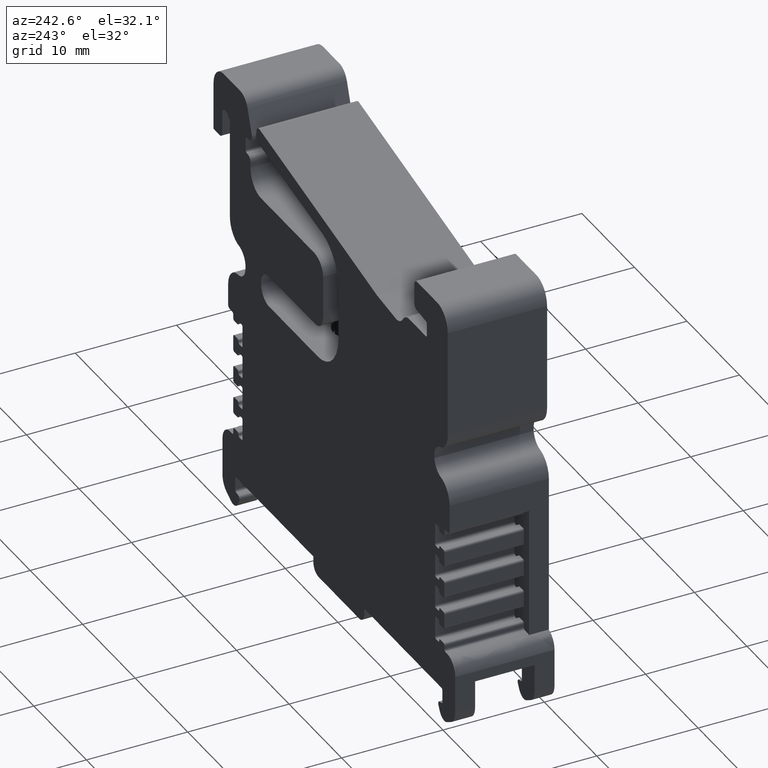
[diagram: clean part render]
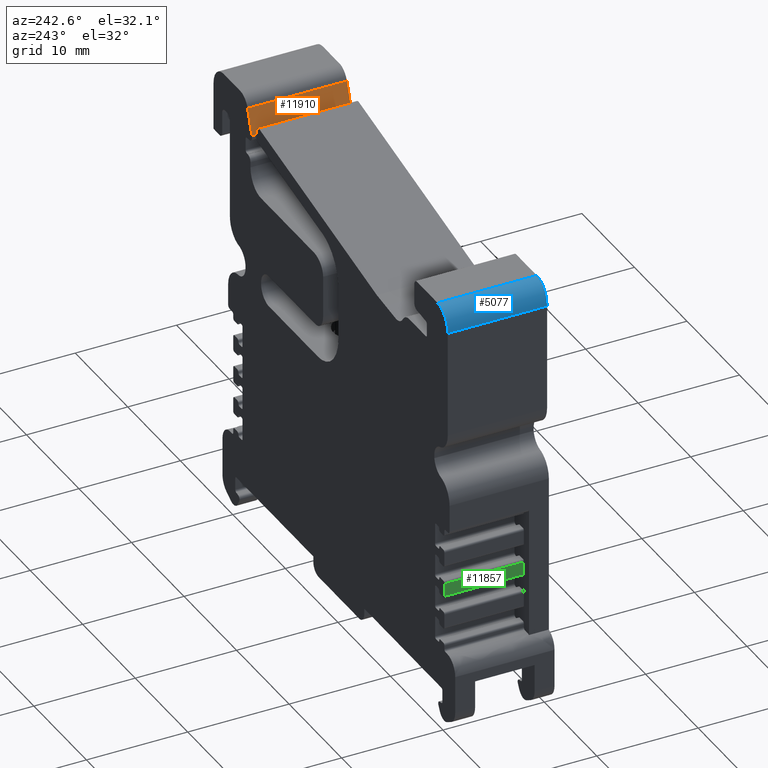
[diagram: same view with three faces highlighted in distinct colors, each labeled with its STEP entity id]
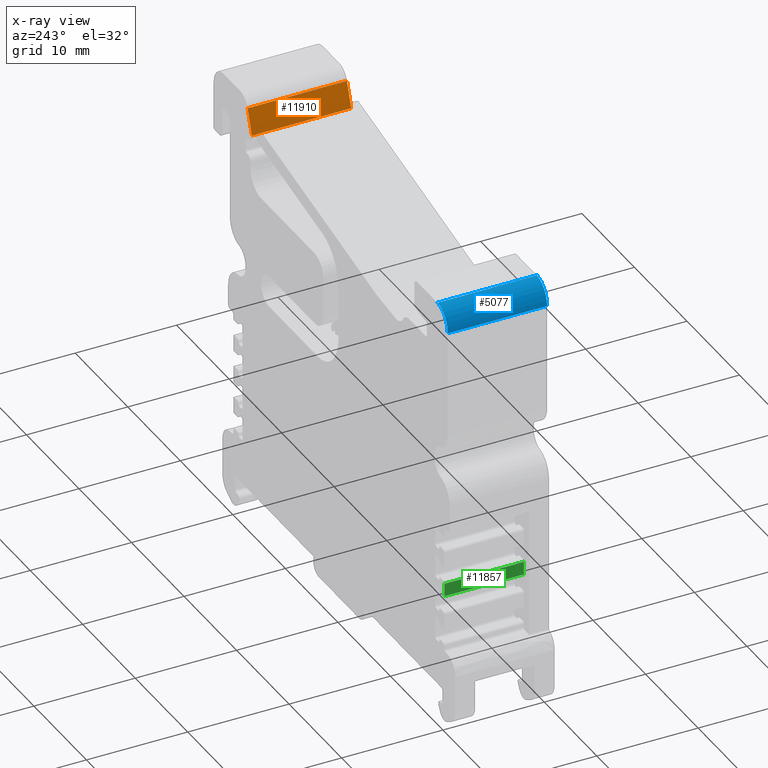
[diagram: x-ray of the same camera — body ghosted, the three highlighted faces saturated]
A machine part, auxiliary view with three faces highlighted in distinct colors.
The next image is the same camera in x-ray (body ghosted, the three faces saturated) — at least one of them is partly hidden behind the body in this view.
Their STEP definitions:

[orange] entity #11910 — the highlighted planar face has unit normal (-0.9456, 0, 0.3254).
#434 = FACE_OUTER_BOUND ( 'NONE', #5712, .T. ) ;
#469 = DIRECTION ( 'NONE',  ( 0.3254495568123546600, 0.0000000000000000000, 0.9455594037238708200 ) ) ;
#473 = PLANE ( 'NONE',  #10195 ) ;
#481 = CARTESIAN_POINT ( 'NONE',  ( 16.57213625430669500, -9.901244391999814100, 36.35493443461078300 ) ) ;
#484 = DIRECTION ( 'NONE',  ( -0.9455594037238708200, 0.0000000000000000000, 0.3254495568123546600 ) ) ;
#821 = DIRECTION ( 'NONE',  ( -0.3254495568123546600, -0.0000000000000000000, -0.9455594037238708200 ) ) ;
#842 = LINE ( 'NONE', #866, #10230 ) ;
#866 = CARTESIAN_POINT ( 'NONE',  ( 16.57213625430669500, -0.1012443920222153700, 36.35493443461078300 ) ) ;
#5295 = ORIENTED_EDGE ( 'NONE', *, *, #12128, .T. ) ;
#5296 = ORIENTED_EDGE ( 'NONE', *, *, #11971, .T. ) ;
#5712 = EDGE_LOOP ( 'NONE', ( #6040, #5295, #6010, #5296 ) ) ;
#6010 = ORIENTED_EDGE ( 'NONE', *, *, #12089, .F. ) ;
#6040 = ORIENTED_EDGE ( 'NONE', *, *, #14172, .T. ) ;
#6882 = CARTESIAN_POINT ( 'NONE',  ( 16.57213625425887200, -0.1012443920222188000, 36.35493443447189300 ) ) ;
#6984 = CARTESIAN_POINT ( 'NONE',  ( 16.57213625425157800, -9.901244391999815900, 36.35493443445071900 ) ) ;
#7034 = CARTESIAN_POINT ( 'NONE',  ( 17.39109711494410200, -9.901244391999817700, 38.73433894399843100 ) ) ;
#7037 = CARTESIAN_POINT ( 'NONE',  ( 17.39109711496600500, -0.1012443920222187600, 38.73433894406204600 ) ) ;
#8189 = DIRECTION ( 'NONE',  ( -0.0000000000000000000, -1.000000000000000000, 0.0000000000000000000 ) ) ;
#8194 = CARTESIAN_POINT ( 'NONE',  ( 16.57213625428153100, -9.901244391999814100, 36.35493443453767500 ) ) ;
#8203 = LINE ( 'NONE', #8194, #10523 ) ;
#10195 = AXIS2_PLACEMENT_3D ( 'NONE', #481, #484, #469 ) ;
#10230 = VECTOR ( 'NONE', #821, 999.9999999999998900 ) ;
#10324 = VECTOR ( 'NONE', #12772, 1000.000000000000000 ) ;
#10340 = VECTOR ( 'NONE', #12894, 1000.000000000000100 ) ;
#10523 = VECTOR ( 'NONE', #8189, 1000.000000000000000 ) ;
#11454 = VERTEX_POINT ( 'NONE', #6882 ) ;
#11506 = VERTEX_POINT ( 'NONE', #6984 ) ;
#11548 = VERTEX_POINT ( 'NONE', #7037 ) ;
#11572 = VERTEX_POINT ( 'NONE', #7034 ) ;
#11910 = ADVANCED_FACE ( 'NONE', ( #434 ), #473, .T. ) ;
#11971 = EDGE_CURVE ( 'NONE', #11548, #11454, #842, .T. ) ;
#12089 = EDGE_CURVE ( 'NONE', #11548, #11572, #12751, .T. ) ;
#12128 = EDGE_CURVE ( 'NONE', #11506, #11572, #12902, .T. ) ;
#12751 = LINE ( 'NONE', #12771, #10324 ) ;
#12771 = CARTESIAN_POINT ( 'NONE',  ( 17.39109711490760200, -5.001244392011017200, 38.73433894389237500 ) ) ;
#12772 = DIRECTION ( 'NONE',  ( -0.0000000000000000000, -1.000000000000000000, -0.0000000000000000000 ) ) ;
#12886 = CARTESIAN_POINT ( 'NONE',  ( 16.57213625427517900, -9.901244391999814100, 36.35493443451927900 ) ) ;
#12894 = DIRECTION ( 'NONE',  ( 0.3254495568123503300, 0.0000000000000000000, 0.9455594037238721500 ) ) ;
#12902 = LINE ( 'NONE', #12886, #10340 ) ;
#14172 = EDGE_CURVE ( 'NONE', #11454, #11506, #8203, .T. ) ;

[blue] entity #5077 — the highlighted face is a freeform B-spline surface patch.
#7 = LINE ( 'NONE', #28, #10302 ) ;
#8 = DIRECTION ( 'NONE',  ( -0.0000000000000000000, -1.000000000000000000, -0.0000000000000000000 ) ) ;
#28 = CARTESIAN_POINT ( 'NONE',  ( -20.71859484943886500, -5.001244392011018100, 36.68207074870054600 ) ) ;
#734 = CARTESIAN_POINT ( 'NONE',  ( -18.76225020262297200, -0.1012443920222211400, 38.75086055759770400 ) ) ;
#737 = CARTESIAN_POINT ( 'NONE',  ( -20.71859484943886500, -0.1012443920222266500, 38.06126395463198300 ) ) ;
#739 = CARTESIAN_POINT ( 'NONE',  ( -20.71859484943886900, -0.1012443920222224500, 36.68207074870054600 ) ) ;
#753 = CARTESIAN_POINT ( 'NONE',  ( -19.74042252603091900, -0.1012443920222240400, 38.75086055759769000 ) ) ;
#1060 = CARTESIAN_POINT ( 'NONE',  ( -20.71859484943886900, -9.901244391999824800, 38.06126395463198300 ) ) ;
#1066 = DIRECTION ( 'NONE',  ( -0.0000000000000000000, -1.000000000000000000, -0.0000000000000000000 ) ) ;
#1070 = CARTESIAN_POINT ( 'NONE',  ( -19.74042252603091500, -9.901244391999819400, 38.75086055759768300 ) ) ;
#1080 = CARTESIAN_POINT ( 'NONE',  ( -18.76225020262297200, -9.901244391999814100, 38.75086055759770400 ) ) ;
#1087 = CARTESIAN_POINT ( 'NONE',  ( -20.71859484943894400, -9.901244391999814100, 36.68207074870054600 ) ) ;
#1089 = LINE ( 'NONE', #1094, #10308 ) ;
#1094 = CARTESIAN_POINT ( 'NONE',  ( -18.76225020262297200, -9.901244391999814100, 38.75086055759771100 ) ) ;
#2453 =( BOUNDED_SURFACE ( )  B_SPLINE_SURFACE ( 3, 1, ( 
 ( #3569, #3594 ),
 ( #3582, #3597 ),
 ( #3614, #3571 ),
 ( #3616, #3589 ) ),
 .UNSPECIFIED., .F., .F., .T. ) 
 B_SPLINE_SURFACE_WITH_KNOTS ( ( 4, 4 ),
 ( 2, 2 ),
 ( 0.7500000000000000000, 1.000000000000000000 ),
 ( 0.0000000000000000000, 1.000000000000000000 ),
 .UNSPECIFIED. ) 
 GEOMETRIC_REPRESENTATION_ITEM ( )  RATIONAL_B_SPLINE_SURFACE ( (
 ( 0.5000000000000000000, 0.5000000000000000000),
 ( 0.5000000000000000000, 0.5000000000000000000),
 ( 0.6666666666666667400, 0.6666666666666667400),
 ( 1.000000000000000000, 1.000000000000000000) ) ) 
 REPRESENTATION_ITEM ( '' )  SURFACE ( )  );
#2556 =( BOUNDED_CURVE ( )  B_SPLINE_CURVE ( 3, ( #734, #753, #737, #739 ),
 .UNSPECIFIED., .F., .F. ) 
 B_SPLINE_CURVE_WITH_KNOTS ( ( 4, 4 ),
 ( 0.0000000000000000000, 0.003144850464088174000 ),
 .UNSPECIFIED. ) 
 CURVE ( )  GEOMETRIC_REPRESENTATION_ITEM ( )  RATIONAL_B_SPLINE_CURVE ( ( 1.000000000000000000, 0.6666666666666667400, 0.5000000000000000000, 0.5000000000000000000 ) ) 
 REPRESENTATION_ITEM ( '' )  );
#2607 =( BOUNDED_CURVE ( )  B_SPLINE_CURVE ( 3, ( #1087, #1060, #1070, #1080 ),
 .UNSPECIFIED., .F., .F. ) 
 B_SPLINE_CURVE_WITH_KNOTS ( ( 4, 4 ),
 ( 1.430489624538199200E-017, 0.003144716318132970600 ),
 .UNSPECIFIED. ) 
 CURVE ( )  GEOMETRIC_REPRESENTATION_ITEM ( )  RATIONAL_B_SPLINE_CURVE ( ( 0.5000000000000000000, 0.5000000000000000000, 0.6666666666666668500, 1.000000000000000000 ) ) 
 REPRESENTATION_ITEM ( '' )  );
#3569 = CARTESIAN_POINT ( 'NONE',  ( -20.71859484943886500, -9.901244391999814100, 36.68207074870054600 ) ) ;
#3571 = CARTESIAN_POINT ( 'NONE',  ( -19.74042252603091900, -0.1012443920222197000, 38.75086055759769000 ) ) ;
#3582 = CARTESIAN_POINT ( 'NONE',  ( -20.71859484943886500, -9.901244391999814100, 38.06126395463198300 ) ) ;
#3589 = CARTESIAN_POINT ( 'NONE',  ( -18.76225020262297200, -0.1012443920222205800, 38.75086055759770400 ) ) ;
#3593 = FACE_OUTER_BOUND ( 'NONE', #5614, .T. ) ;
#3594 = CARTESIAN_POINT ( 'NONE',  ( -20.71859484943886500, -0.1012443920222223100, 36.68207074870054600 ) ) ;
#3597 = CARTESIAN_POINT ( 'NONE',  ( -20.71859484943886500, -0.1012443920222223100, 38.06126395463198300 ) ) ;
#3614 = CARTESIAN_POINT ( 'NONE',  ( -19.74042252603091900, -9.901244391999812300, 38.75086055759769000 ) ) ;
#3616 = CARTESIAN_POINT ( 'NONE',  ( -18.76225020262297200, -9.901244391999812300, 38.75086055759770400 ) ) ;
#5077 = ADVANCED_FACE ( 'NONE', ( #3593 ), #2453, .T. ) ;
#5614 = EDGE_LOOP ( 'NONE', ( #14889, #14907, #14940, #14890 ) ) ;
#6988 = CARTESIAN_POINT ( 'NONE',  ( -18.76225020262297200, -0.1012443920222211400, 38.75086055759770400 ) ) ;
#7041 = CARTESIAN_POINT ( 'NONE',  ( -20.71859484943886900, -0.1012443920222224500, 36.68207074870054600 ) ) ;
#7065 = CARTESIAN_POINT ( 'NONE',  ( -20.71859484943894400, -9.901244391999814100, 36.68207074870054600 ) ) ;
#7107 = CARTESIAN_POINT ( 'NONE',  ( -18.76225020262297200, -9.901244391999814100, 38.75086055759770400 ) ) ;
#10302 = VECTOR ( 'NONE', #8, 1000.000000000000000 ) ;
#10308 = VECTOR ( 'NONE', #1066, 1000.000000000000000 ) ;
#11469 = VERTEX_POINT ( 'NONE', #6988 ) ;
#11542 = VERTEX_POINT ( 'NONE', #7065 ) ;
#11567 = VERTEX_POINT ( 'NONE', #7041 ) ;
#11616 = VERTEX_POINT ( 'NONE', #7107 ) ;
#11954 = EDGE_CURVE ( 'NONE', #11469, #11567, #2556, .T. ) ;
#12037 = EDGE_CURVE ( 'NONE', #11469, #11616, #1089, .T. ) ;
#12043 = EDGE_CURVE ( 'NONE', #11542, #11616, #2607, .T. ) ;
#12058 = EDGE_CURVE ( 'NONE', #11567, #11542, #7, .T. ) ;
#14889 = ORIENTED_EDGE ( 'NONE', *, *, #12058, .T. ) ;
#14890 = ORIENTED_EDGE ( 'NONE', *, *, #11954, .T. ) ;
#14907 = ORIENTED_EDGE ( 'NONE', *, *, #12043, .T. ) ;
#14940 = ORIENTED_EDGE ( 'NONE', *, *, #12037, .F. ) ;

[green] entity #11857 — the highlighted planar face has unit normal (-1, 0, 0).
#108 = DIRECTION ( 'NONE',  ( 0.0000000000000000000, 0.0000000000000000000, 1.000000000000000000 ) ) ;
#113 = CARTESIAN_POINT ( 'NONE',  ( -20.08278283922609800, -9.901244391999814100, 9.127391364649913200 ) ) ;
#118 = DIRECTION ( 'NONE',  ( -1.000000000000000000, 0.0000000000000000000, 0.0000000000000000000 ) ) ;
#128 = PLANE ( 'NONE',  #10146 ) ;
#129 = FACE_OUTER_BOUND ( 'NONE', #14454, .T. ) ;
#1915 = LINE ( 'NONE', #1930, #10657 ) ;
#1930 = CARTESIAN_POINT ( 'NONE',  ( -20.08278283922609800, -9.901244391999814100, 9.127391364649909600 ) ) ;
#1941 = DIRECTION ( 'NONE',  ( -0.0000000000000000000, -1.000000000000000000, 0.0000000000000000000 ) ) ;
#2011 = LINE ( 'NONE', #2032, #9974 ) ;
#2024 = LINE ( 'NONE', #2062, #9986 ) ;
#2032 = CARTESIAN_POINT ( 'NONE',  ( -20.08278283922612700, -4.021244392013263000, 10.43072894425552600 ) ) ;
#2044 = DIRECTION ( 'NONE',  ( -0.0000000000000000000, -1.000000000000000000, -0.0000000000000000000 ) ) ;
#2058 = DIRECTION ( 'NONE',  ( 0.0000000000000000000, 0.0000000000000000000, 1.000000000000000000 ) ) ;
#2062 = CARTESIAN_POINT ( 'NONE',  ( -20.08278283922609800, -7.941244392004303900, 9.127391364649913200 ) ) ;
#2088 = LINE ( 'NONE', #2097, #9990 ) ;
#2097 = CARTESIAN_POINT ( 'NONE',  ( -20.08278283922609800, -4.271244392013262100, 9.127391364649915000 ) ) ;
#2099 = DIRECTION ( 'NONE',  ( 0.0000000000000000000, 1.000000000000000000, 0.0000000000000000000 ) ) ;
#2206 = DIRECTION ( 'NONE',  ( -0.0000000000000000000, -0.0000000000000000000, -1.000000000000000000 ) ) ;
#2223 = CARTESIAN_POINT ( 'NONE',  ( -20.08278283922609800, -0.1012443920222223100, 9.127391364649913200 ) ) ;
#2229 = LINE ( 'NONE', #2223, #10047 ) ;
#7431 = EDGE_CURVE ( 'NONE', #13899, #13992, #1915, .T. ) ;
#7456 = EDGE_CURVE ( 'NONE', #13950, #14003, #2011, .T. ) ;
#7460 = EDGE_CURVE ( 'NONE', #13952, #14003, #2024, .T. ) ;
#7474 = EDGE_CURVE ( 'NONE', #13952, #13992, #2088, .T. ) ;
#7526 = EDGE_CURVE ( 'NONE', #13950, #13899, #2229, .T. ) ;
#9974 = VECTOR ( 'NONE', #2044, 1000.000000000000000 ) ;
#9986 = VECTOR ( 'NONE', #2058, 1000.000000000000000 ) ;
#9990 = VECTOR ( 'NONE', #2099, 1000.000000000000000 ) ;
#10047 = VECTOR ( 'NONE', #2206, 1000.000000000000000 ) ;
#10146 = AXIS2_PLACEMENT_3D ( 'NONE', #113, #118, #108 ) ;
#10657 = VECTOR ( 'NONE', #1941, 1000.000000000000000 ) ;
#11703 = ORIENTED_EDGE ( 'NONE', *, *, #7456, .F. ) ;
#11737 = ORIENTED_EDGE ( 'NONE', *, *, #7526, .T. ) ;
#11759 = ORIENTED_EDGE ( 'NONE', *, *, #7474, .F. ) ;
#11773 = ORIENTED_EDGE ( 'NONE', *, *, #7431, .T. ) ;
#11820 = ORIENTED_EDGE ( 'NONE', *, *, #7460, .T. ) ;
#11857 = ADVANCED_FACE ( 'NONE', ( #129 ), #128, .T. ) ;
#13721 = CARTESIAN_POINT ( 'NONE',  ( -20.08278283922611300, -0.1012443920222224500, 10.43072894425539200 ) ) ;
#13726 = CARTESIAN_POINT ( 'NONE',  ( -20.08278283922609800, -0.1012443920222220600, 9.127391364649909600 ) ) ;
#13731 = CARTESIAN_POINT ( 'NONE',  ( -20.08278283922609800, -7.941244392004303900, 9.127391364649915000 ) ) ;
#13782 = CARTESIAN_POINT ( 'NONE',  ( -20.08278283922609800, -0.6012443920222205800, 9.127391364649913200 ) ) ;
#13795 = CARTESIAN_POINT ( 'NONE',  ( -20.08278283922611300, -7.941244392004303900, 10.43072894425539200 ) ) ;
#13899 = VERTEX_POINT ( 'NONE', #13726 ) ;
#13950 = VERTEX_POINT ( 'NONE', #13721 ) ;
#13952 = VERTEX_POINT ( 'NONE', #13731 ) ;
#13992 = VERTEX_POINT ( 'NONE', #13782 ) ;
#14003 = VERTEX_POINT ( 'NONE', #13795 ) ;
#14454 = EDGE_LOOP ( 'NONE', ( #11737, #11773, #11759, #11820, #11703 ) ) ;